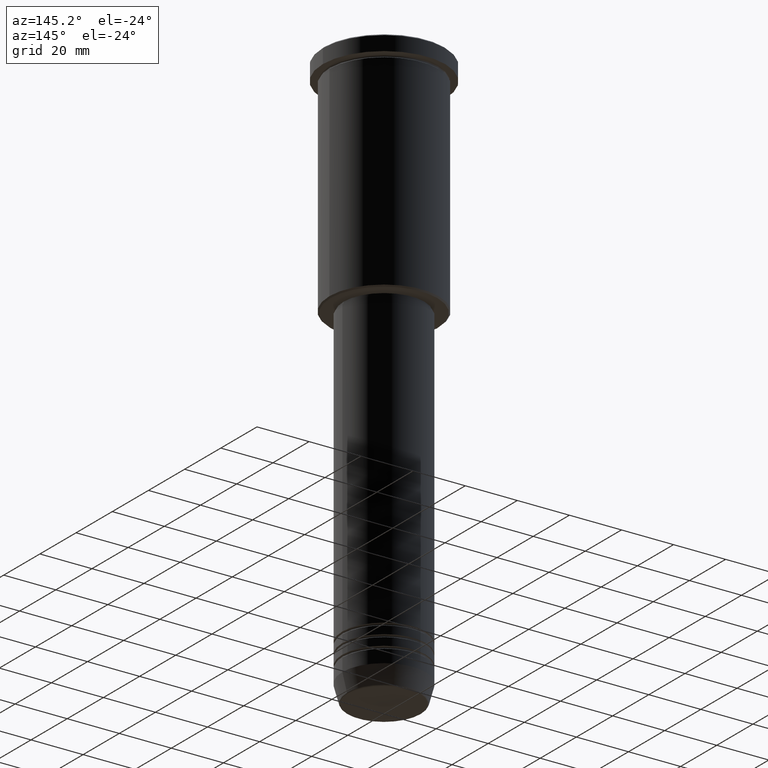
[diagram: clean part render]
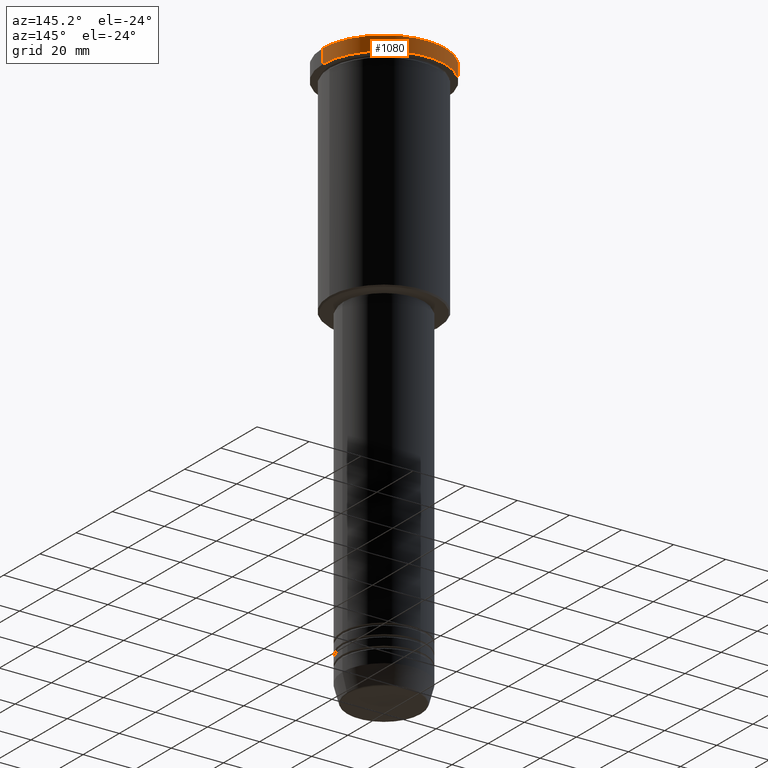
[diagram: same view with one face highlighted and labeled with its STEP entity id]
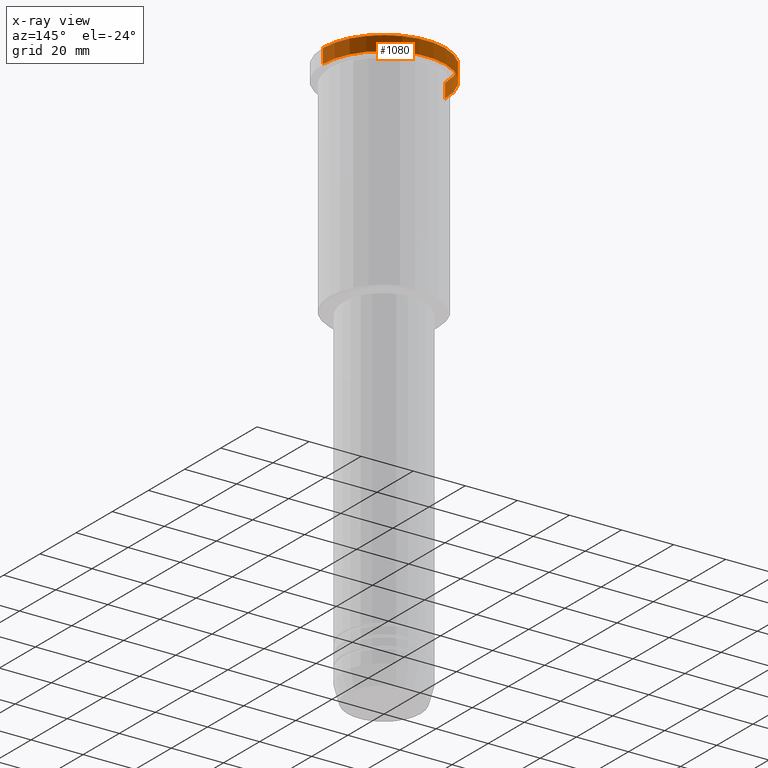
[diagram: x-ray of the same camera — body ghosted, the highlighted face saturated]
A machine part, auxiliary view. The second image highlights one B-rep face of the part: STEP entity #1080.
The next image is the same camera in x-ray: the body ghosted, the highlighted face saturated — about 1% of this face is hidden behind the body in this view.
In plain terms, the highlighted cylindrical surface (partial cylindrical patch) has radius 23.5 mm, axis along (-0, -0, 1).
Its self-contained STEP definition (entity closure, byte-faithful):
#14 = ORIENTED_EDGE ( 'NONE', *, *, #281, .T. ) ;
#28 = CIRCLE ( 'NONE', #325, 23.50000000000000000 ) ;
#46 = CIRCLE ( 'NONE', #347, 23.50000000000000000 ) ;
#49 = CYLINDRICAL_SURFACE ( 'NONE', #834, 23.50000000000000000 ) ;
#55 = VERTEX_POINT ( 'NONE', #236 ) ;
#118 = EDGE_CURVE ( 'NONE', #55, #183, #418, .T. ) ;
#148 = VECTOR ( 'NONE', #1032, 1000.000000000000000 ) ;
#163 = VERTEX_POINT ( 'NONE', #714 ) ;
#180 = CARTESIAN_POINT ( 'NONE',  ( 23.50000000000000000, 0.000000000000000000, -0.5000000000000004441 ) ) ;
#183 = VERTEX_POINT ( 'NONE', #180 ) ;
#199 = CARTESIAN_POINT ( 'NONE',  ( 0.000000000000000000, 0.000000000000000000, -0.5000000000000004441 ) ) ;
#236 = CARTESIAN_POINT ( 'NONE',  ( 23.50000000000000000, 0.000000000000000000, -5.999999999999993783 ) ) ;
#277 = ORIENTED_EDGE ( 'NONE', *, *, #982, .T. ) ;
#281 = EDGE_CURVE ( 'NONE', #55, #163, #46, .T. ) ;
#312 = FACE_OUTER_BOUND ( 'NONE', #315, .T. ) ;
#315 = EDGE_LOOP ( 'NONE', ( #14, #277, #585, #864 ) ) ;
#325 = AXIS2_PLACEMENT_3D ( 'NONE', #199, #665, #1133 ) ;
#347 = AXIS2_PLACEMENT_3D ( 'NONE', #402, #743, #1021 ) ;
#402 = CARTESIAN_POINT ( 'NONE',  ( 0.000000000000000000, 0.000000000000000000, -5.999999999999993783 ) ) ;
#412 = DIRECTION ( 'NONE',  ( 1.000000000000000000, 0.000000000000000000, 0.000000000000000000 ) ) ;
#418 = LINE ( 'NONE', #495, #148 ) ;
#471 = CARTESIAN_POINT ( 'NONE',  ( -23.50000000000000000, 2.877919977996280320E-15, 0.000000000000000000 ) ) ;
#495 = CARTESIAN_POINT ( 'NONE',  ( 23.50000000000000000, 0.000000000000000000, 0.000000000000000000 ) ) ;
#513 = EDGE_CURVE ( 'NONE', #1176, #183, #28, .T. ) ;
#521 = CARTESIAN_POINT ( 'NONE',  ( 0.000000000000000000, 0.000000000000000000, 0.000000000000000000 ) ) ;
#585 = ORIENTED_EDGE ( 'NONE', *, *, #513, .T. ) ;
#618 = CARTESIAN_POINT ( 'NONE',  ( -23.50000000000000000, 2.877919977996280320E-15, -0.5000000000000004441 ) ) ;
#665 = DIRECTION ( 'NONE',  ( 0.000000000000000000, 0.000000000000000000, -1.000000000000000000 ) ) ;
#714 = CARTESIAN_POINT ( 'NONE',  ( -23.50000000000000000, 2.877919977996280320E-15, -5.999999999999993783 ) ) ;
#743 = DIRECTION ( 'NONE',  ( -0.000000000000000000, -0.000000000000000000, 1.000000000000000000 ) ) ;
#834 = AXIS2_PLACEMENT_3D ( 'NONE', #521, #1143, #412 ) ;
#864 = ORIENTED_EDGE ( 'NONE', *, *, #118, .F. ) ;
#924 = LINE ( 'NONE', #471, #1171 ) ;
#982 = EDGE_CURVE ( 'NONE', #163, #1176, #924, .T. ) ;
#1002 = DIRECTION ( 'NONE',  ( -0.000000000000000000, -0.000000000000000000, 1.000000000000000000 ) ) ;
#1021 = DIRECTION ( 'NONE',  ( 1.000000000000000000, 0.000000000000000000, 0.000000000000000000 ) ) ;
#1032 = DIRECTION ( 'NONE',  ( -0.000000000000000000, -0.000000000000000000, 1.000000000000000000 ) ) ;
#1080 = ADVANCED_FACE ( 'NONE', ( #312 ), #49, .T. ) ;
#1133 = DIRECTION ( 'NONE',  ( 1.000000000000000000, 0.000000000000000000, 0.000000000000000000 ) ) ;
#1143 = DIRECTION ( 'NONE',  ( -0.000000000000000000, -0.000000000000000000, 1.000000000000000000 ) ) ;
#1171 = VECTOR ( 'NONE', #1002, 1000.000000000000000 ) ;
#1176 = VERTEX_POINT ( 'NONE', #618 ) ;